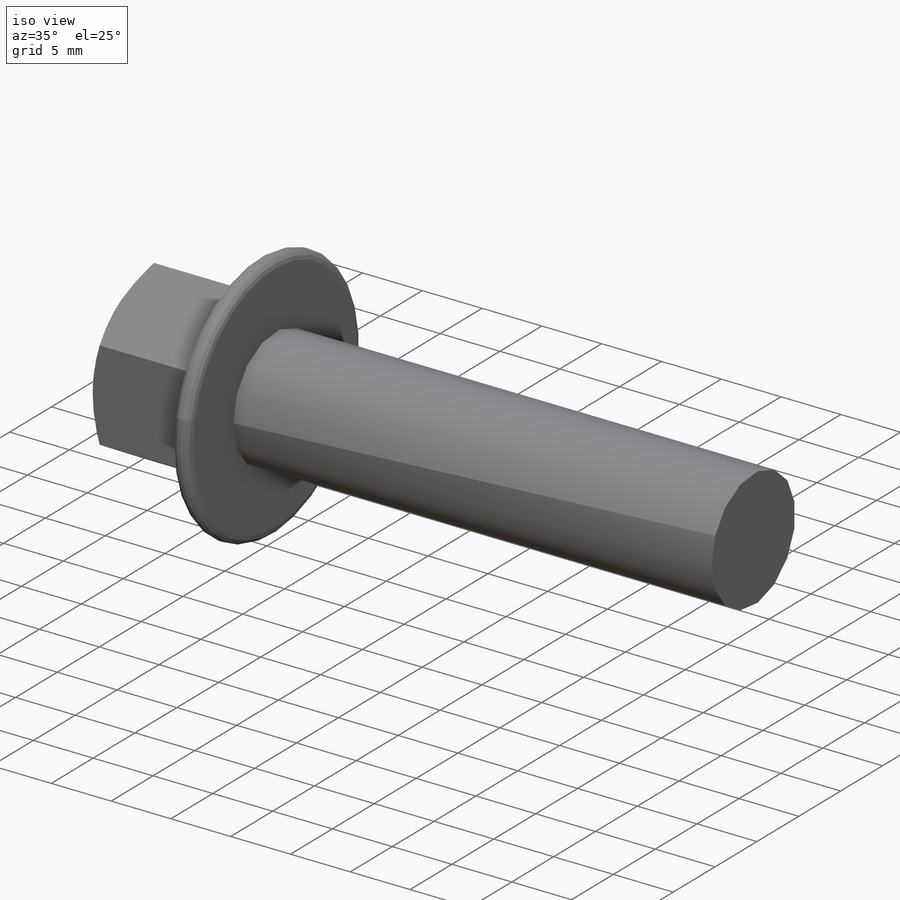
[diagram: iso view]
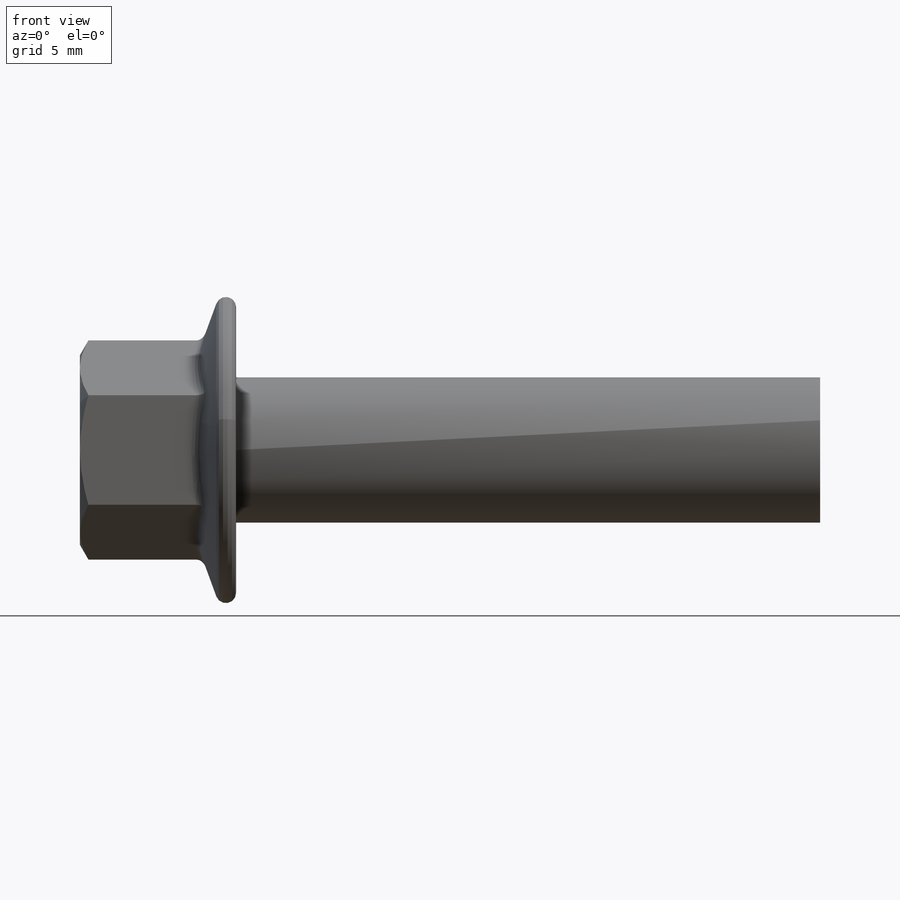
[diagram: front view]
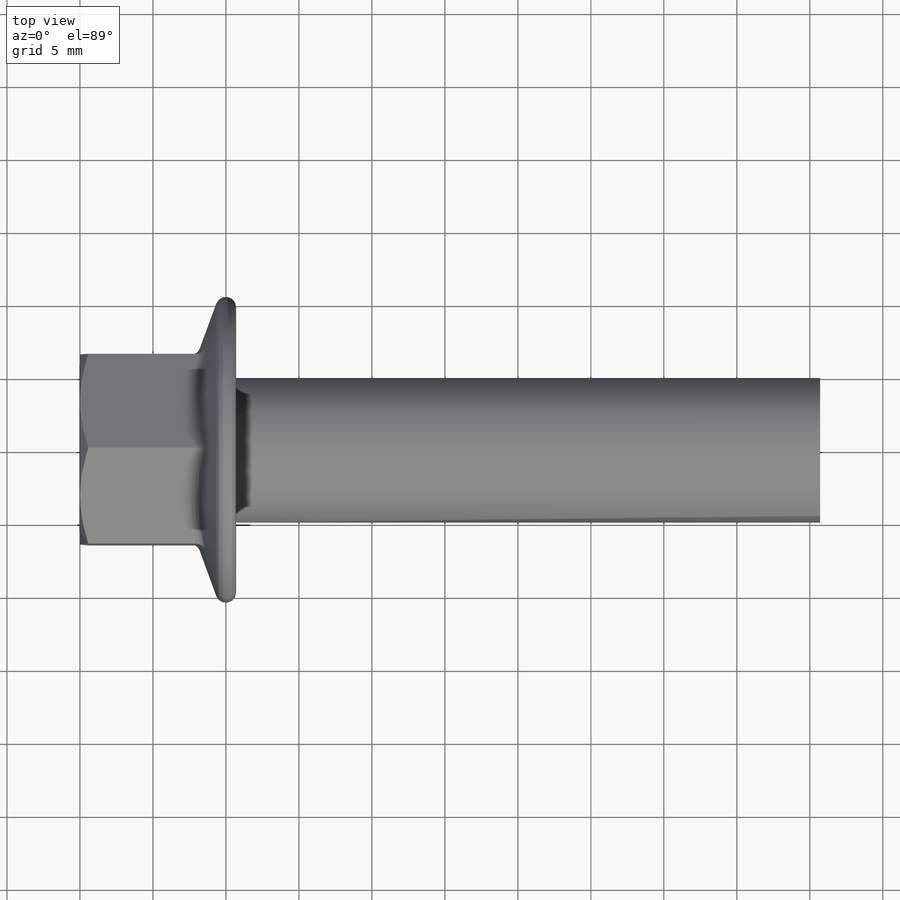
[diagram: top view]
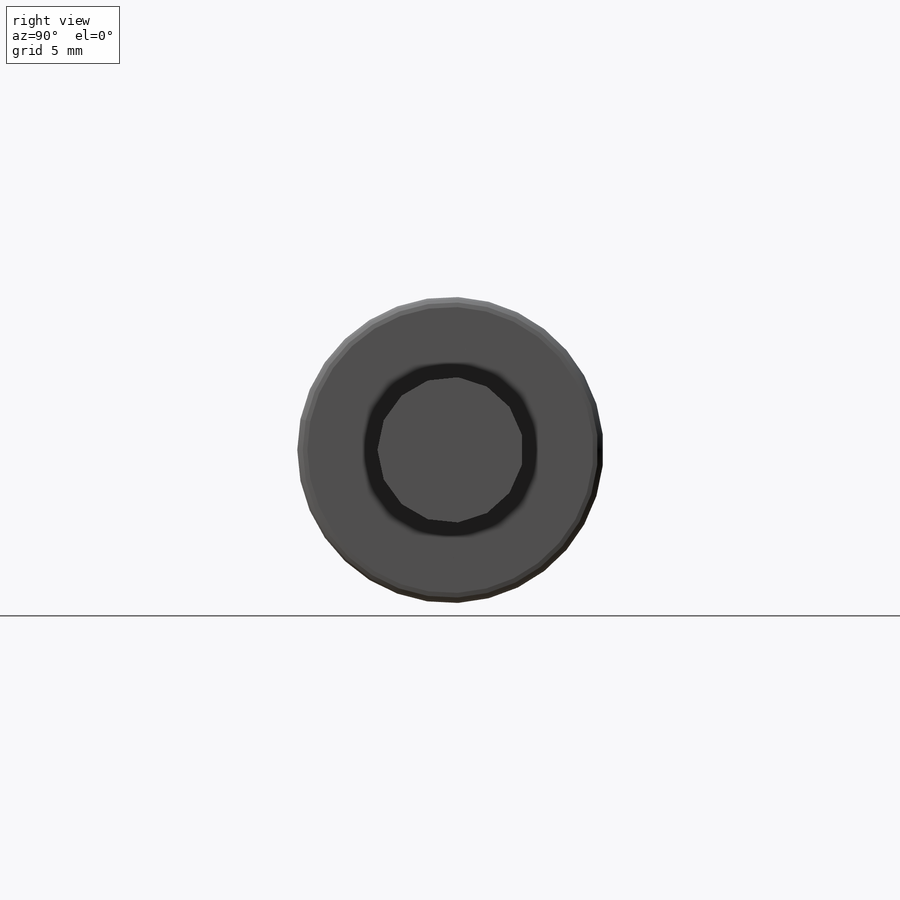
[diagram: right view]
SOLIDWORKS PART (.sldprt)
format: sldprt  version: not decoded by parser v0  size: 406,528 bytes
history: native  units: mm
features: sketch x5, plane x3, revolve x2, cut_extrude x2, fillet x2, material x1, thread x1, cut_revolve x1, pattern_linear x1 (+12 scaffold rows collapsed; 1 parser-record rows omitted)
feature tree (31):
  parser-record x1  (decoder bookkeeping rows leaked as tree rows — omitted from the tree; the rows remain in map.json)
  scaffold x12  (default folders/planes/origin — collapsed)
  material  "Material <not specified>"
  plane  "Plane1"
  plane  "Plane2"
  plane  "Plane3"
  sketch  "BodySke"  dims[c1.D1=~7.099516mm c1.Head_ang=85.0deg c1.Oval_ht=2.3876mm c1.Head_ht=6.1976mm c1.Diameter=4.0mm c1.Length=76.2mm c1.Head_dia=20.0152mm c2.Head_dia=25.4mm c2.Head_ht=15.5448mm c2.Length=38.1mm c2.Head_side_ht=11.2014mm c2.Width_across_flats=5.5mm c2.Width_across_corners=~6.351039mm c2.Washer_dia=19.812mm c3.Head_ht=7.493mm c3.Length=38.1mm c3.Washer_thickness=1.6002mm c3.D7=6.35mm c4.D7=30.0deg c4.Head_ht=4.3mm c4.Length=40.0mm c4.Advance=0.7mm c4.Thread_nom=40.0mm c4.Thread_lim=~37.30625mm]
  revolve  "Base-Revolve"  [1 undecoded]
  thread  "ThreadCosmetic"  Diameter=39.3mm Thread_length=39.3mm Thread_minor=3.22mm Width_across_flats=5.5mm Width_across_corners=6.351039mm  [1 undecoded]
  sketch  "Sketch2"  dims[c1.D4=~6.41455mm c1.Cross_width=2.4638mm c1.D1=1.2319mm c1.Cross_dia=15.4686mm c1.D2=7.7343mm c2.D1=25.4mm c2.D2=~25.523757mm c2.D3=25.4mm c3.D2=~15.993827mm c4.D2=~74.867564deg c4.D1=~15.993827mm c5.D1=~74.867564deg c6.D1=25.4mm c6.D2=~31.987653mm c6.D3=~15.993827mm c7.D3=60.0deg c7.D2=~13.80016mm c7.D1=25.4mm c8.D2=~17.322957mm c8.D1=25.4mm c9.D2=~17.322957mm c9.D1=12.7mm c10.D2=~38.286976mm c10.Width_across_flats=30.48mm c10.D1=12.7mm c10.D3=~3.175426mm c11.D2=~6.350853mm c11.d1=5.5mm]
  cut_extrude  "Hex-Die"  Depth=4.3mm
  sketch  "Sketch5"  dims[c1.D1=18.0mm c1.D2=10.0mm c1.Bearing_ht=2.4mm c2.D1=~8.764435mm c3.D1=20.0deg c4.D1=~25.029199mm c5.D1=20.0deg c5.Flange_thickness=0.6mm c5.Flange_dia=32.8mm c6.Flange_dia=8.5mm]
  revolve  "Flange"  Angle=360deg
  fillet  "FlangeHexFillet"  Radius=0.2mm Flange_fillet_rad=0.2mm
  fillet  "HeadFillet"  Radius=0.2mm Fillet_radius=0.2mm
  sketch  "Sketch4"  dims[D1=4.8125mm]
  cut_extrude  "Indent"  Depth=0.358333mm
  sketch  "ThdSchSke"  dims[c1.Thread_minor=~1.03886mm c1.Diameter=~1.413535mm c1.Start=~0.988134mm c1.D4=~4.446753mm c1.Vee=60.0deg c2.Thread_minor=~1.03886mm c2.Start=~2.540025mm c2.D1=~0.108159mm c2.D2=~0.108159mm c3.D1=~0.216319mm c3.SideAngle=55.0deg c3.D2=~0.216319mm c3.VeeAngle=70.0deg c3.Thread_minor=3.22mm c3.Overcut=5.0mm c3.Diameter=4.0mm c3.D6=~8.326268mm c4.D1=~8.326268mm c5.D1=90.0deg c5.Start=11.1125mm c6.Start=~44.450025mm c7.Start=5.0mm]
  cut_revolve  "ThreadSchematic"  Angle=360deg
  pattern_linear  "ThdSchPat"  Count1=58 Count2=1 Spacing1=0.689474mm Spacing2=50mm Num_threads=58 Advance=0.689474mm ConfigurationName=0mm CopiedFlag=0 PartNumberID=0mm
decode coverage: 13 of 14 modeling features carry decoded parameters
note: ~ marks probable driven/reference dimensions
note: 2 parameter values undecoded
note: suppression state not decoded; provenance and decode notes live in map.json
